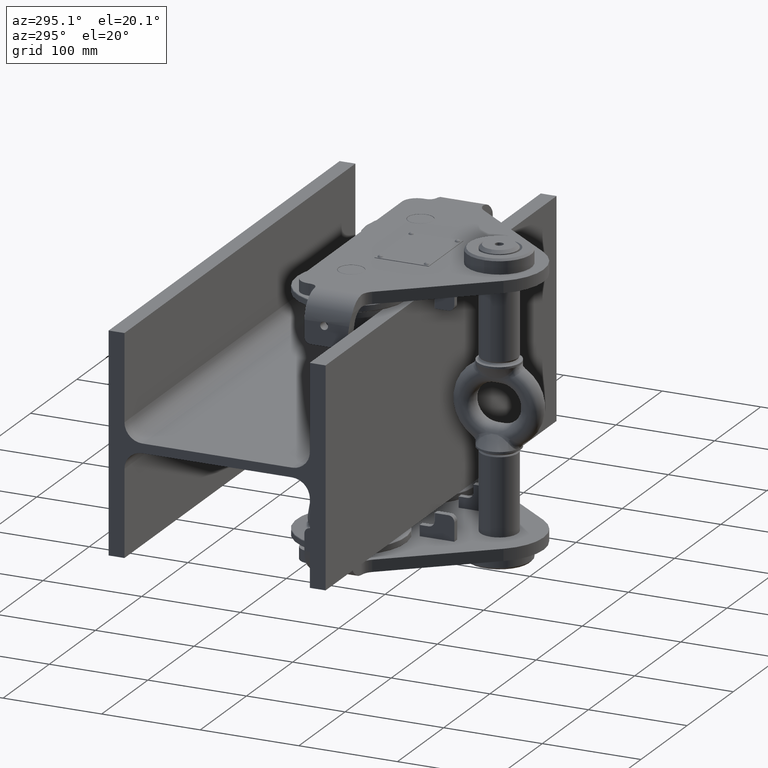
[diagram: clean part render]
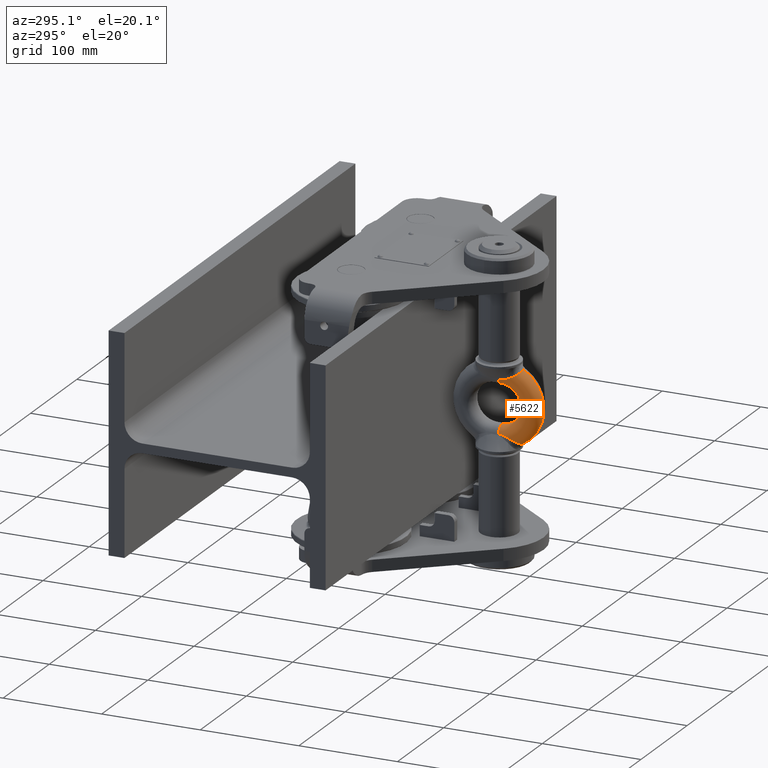
[diagram: same view with one face highlighted and labeled with its STEP entity id]
A machine part, auxiliary view. The second image highlights one B-rep face of the part: STEP entity #5622.
In plain terms, the highlighted toroidal blend (fillet) surface has major radius 31 mm and minor (blend) radius 11 mm.
Its self-contained STEP definition (entity closure, byte-faithful):
#429 = CARTESIAN_POINT ( 'NONE',  ( -2.665864661284941900, -193.7230851919375700, 35.86904092922608100 ) ) ;
#1957 = CARTESIAN_POINT ( 'NONE',  ( -7.073130345856471400, -192.1304078085558700, -34.20754636227652400 ) ) ;
#2020 = CARTESIAN_POINT ( 'NONE',  ( -5.816270571576700900, -192.8363325459275500, 34.83912537834806500 ) ) ;
#2160 = CARTESIAN_POINT ( 'NONE',  ( -6.464776766985496100, -192.5010721557301800, 34.52899101122230300 ) ) ;
#2293 = CARTESIAN_POINT ( 'NONE',  ( -9.453499129214291600, -189.6250286611885100, 32.37954828275505300 ) ) ;
#2335 = CARTESIAN_POINT ( 'NONE',  ( 1.667841704943140700E-013, -172.4999999999990300, 30.99999999999999300 ) ) ;
#2446 = ORIENTED_EDGE ( 'NONE', *, *, #25086, .T. ) ;
#2609 = B_SPLINE_CURVE_WITH_KNOTS ( 'NONE', 3,
 ( #26083, #19968, #4947, #35064, #2020, #32511, #2160, #11034, #32374, #35549, #7869, #38616, #2293, #23555, #29072, #10915, #29205, #23302, #13993, #20353 ),
 .UNSPECIFIED., .F., .F.,
 ( 4, 2, 2, 2, 2, 2, 2, 2, 2, 4 ),
 ( 0.02061757730450958900, 0.02218771759781521000, 0.02297278774446800600, 0.02375785789112079900, 0.02689813847773200200, 0.02768320862438478400, 0.02846827877103757000, 0.03003841906434314600, 0.03160855935764872400, 0.03317869965095430300 ),
 .UNSPECIFIED. ) ;
#2738 = DIRECTION ( 'NONE',  ( -1.000000000000000000, 0.0000000000000000000, 6.939431567305113600E-017 ) ) ;
#3993 = CARTESIAN_POINT ( 'NONE',  ( -10.86059126895337600, -185.4816644950572300, 30.06258340688152600 ) ) ;
#4346 = CARTESIAN_POINT ( 'NONE',  ( -10.86059126896633500, -185.4816644949588600, -30.06258340683621800 ) ) ;
#4603 = CARTESIAN_POINT ( 'NONE',  ( -10.94098412003436700, -181.2929592295776000, 28.32622397578655100 ) ) ;
#4624 = CARTESIAN_POINT ( 'NONE',  ( -10.51761595167940300, -187.3375190878605600, -30.97972163784835700 ) ) ;
#4822 = DIRECTION ( 'NONE',  ( -1.000000000000000000, 0.0000000000000000000, 6.939431567305113600E-017 ) ) ;
#4947 = CARTESIAN_POINT ( 'NONE',  ( -4.914677211445558100, -193.2092134186008800, 35.21703518008940400 ) ) ;
#5005 = CARTESIAN_POINT ( 'NONE',  ( -10.04277165718530500, -172.4999999999991500, 26.51193388622312200 ) ) ;
#5305 = CARTESIAN_POINT ( 'NONE',  ( -10.86059126896633500, -185.4816644949588600, -30.06258340683621800 ) ) ;
#5406 = ORIENTED_EDGE ( 'NONE', *, *, #10250, .T. ) ;
#5622 = ADVANCED_FACE ( 'NONE', ( #15928 ), #39167, .T. ) ;
#5826 = ORIENTED_EDGE ( 'NONE', *, *, #38865, .T. ) ;
#6278 = CARTESIAN_POINT ( 'NONE',  ( -3.956771076925034600, -193.4763785398734200, 35.53429596191681100 ) ) ;
#6407 = VERTEX_POINT ( 'NONE', #37317 ) ;
#6531 = CARTESIAN_POINT ( 'NONE',  ( -1.348441268199292600, -193.8606645752298900, 36.09000583857776700 ) ) ;
#6722 = CARTESIAN_POINT ( 'NONE',  ( -0.6792100834334921000, -193.8895612932108500, -36.14535471791597800 ) ) ;
#7186 = CIRCLE ( 'NONE', #32579, 11.00000000000000200 ) ;
#7661 = CARTESIAN_POINT ( 'NONE',  ( -6.263021965805512200, -192.6239422776005200, -34.63556435258485100 ) ) ;
#7789 = CARTESIAN_POINT ( 'NONE',  ( -9.801017030864027600, -189.0368941027778400, -31.99599951611059000 ) ) ;
#7869 = CARTESIAN_POINT ( 'NONE',  ( -9.065727411220589000, -190.1924455898634100, 32.76287081569965700 ) ) ;
#8271 = AXIS2_PLACEMENT_3D ( 'NONE', #9994, #19207, #19467 ) ;
#8613 = CARTESIAN_POINT ( 'NONE',  ( -3.317210764557444200, -193.6177932875910100, -35.71745728358008900 ) ) ;
#8827 = CARTESIAN_POINT ( 'NONE',  ( 1.659800581875115500E-013, -172.4999999999999100, -6.744701407581990500E-015 ) ) ;
#8954 = DIRECTION ( 'NONE',  ( 1.955308932202714900E-030, -1.000000000000000000, 2.823227173001816600E-014 ) ) ;
#9103 = CARTESIAN_POINT ( 'NONE',  ( -11.00309267796346200, -182.8768452642172800, -28.94228350723287900 ) ) ;
#9994 = CARTESIAN_POINT ( 'NONE',  ( 1.624817229225848600E-013, -172.5000000000003100, -31.00000000000000700 ) ) ;
#10250 = EDGE_CURVE ( 'NONE', #24506, #37141, #27774, .T. ) ;
#10418 = CARTESIAN_POINT ( 'NONE',  ( -10.07212869014797000, -173.6345560774208800, 26.57762498147496200 ) ) ;
#10476 = CARTESIAN_POINT ( 'NONE',  ( -10.07212869014779400, -173.6345560774128700, -26.57762498147453200 ) ) ;
#10538 = CARTESIAN_POINT ( 'NONE',  ( -10.92817867630647700, -184.9685418085377900, 29.82615423025547200 ) ) ;
#10849 = CARTESIAN_POINT ( 'NONE',  ( -8.635313615084882600, -190.7253606260765700, -33.13724577590873800 ) ) ;
#10915 = CARTESIAN_POINT ( 'NONE',  ( -10.34151703523699200, -187.7794055878490300, 31.24003331470228100 ) ) ;
#10966 = CARTESIAN_POINT ( 'NONE',  ( -7.452365095064458900, -191.8529525709871300, -33.98238249504738900 ) ) ;
#11034 = CARTESIAN_POINT ( 'NONE',  ( -7.486854526752926700, -191.8781860578304500, 33.98886382105531800 ) ) ;
#11768 = DIRECTION ( 'NONE',  ( -1.000000000000000000, 0.0000000000000000000, 0.0000000000000000000 ) ) ;
#12209 = CARTESIAN_POINT ( 'NONE',  ( -10.04277165718533400, -172.5000000000002600, -26.51193388622319700 ) ) ;
#12359 = VERTEX_POINT ( 'NONE', #12209 ) ;
#12635 = CARTESIAN_POINT ( 'NONE',  ( -3.956771076925037300, -193.4763785398734200, -35.53429596191681800 ) ) ;
#12933 = B_SPLINE_CURVE_WITH_KNOTS ( 'NONE', 3,
 ( #12635, #26414, #8613, #39119, #30974, #22163, #6722, #29185 ),
 .UNSPECIFIED., .F., .F.,
 ( 4, 2, 2, 4 ),
 ( 0.0000000000000000000, 0.001018688722446136600, 0.002037377444892273100, 0.004074754889784546300 ),
 .UNSPECIFIED. ) ;
#13142 = CARTESIAN_POINT ( 'NONE',  ( -3.956771076925037300, -193.4763785398734200, -35.53429596191681800 ) ) ;
#13502 = CARTESIAN_POINT ( 'NONE',  ( -10.15424992020612800, -174.7602593799728700, 26.68313006037317000 ) ) ;
#13672 = CARTESIAN_POINT ( 'NONE',  ( -3.956771076925037300, -193.4763785398734200, -35.53429596191681800 ) ) ;
#13993 = CARTESIAN_POINT ( 'NONE',  ( -10.79785756768068300, -185.9579994708168200, 30.28200713144420000 ) ) ;
#14152 = CARTESIAN_POINT ( 'NONE',  ( 2.302907216007832600E-011, -193.8895612932108700, 36.14535471791597100 ) ) ;
#14706 = VERTEX_POINT ( 'NONE', #13142 ) ;
#14848 = ORIENTED_EDGE ( 'NONE', *, *, #37128, .T. ) ;
#14888 = VERTEX_POINT ( 'NONE', #28669 ) ;
#15928 = FACE_OUTER_BOUND ( 'NONE', #33086, .T. ) ;
#16689 = DIRECTION ( 'NONE',  ( -1.000000000000000000, 0.0000000000000000000, 6.939431567305113600E-017 ) ) ;
#16766 = EDGE_CURVE ( 'NONE', #12359, #28258, #24582, .T. ) ;
#16983 = CARTESIAN_POINT ( 'NONE',  ( -5.832123771989274500, -192.8398615307866600, -34.83856190192207000 ) ) ;
#17054 = DIRECTION ( 'NONE',  ( -6.939431567305113600E-017, 0.0000000000000000000, -1.000000000000000000 ) ) ;
#17055 = EDGE_CURVE ( 'NONE', #14706, #35278, #12933, .T. ) ;
#17102 = CARTESIAN_POINT ( 'NONE',  ( -9.075204815294885200, -190.1951594617654600, -32.76245228593803900 ) ) ;
#18491 = CARTESIAN_POINT ( 'NONE',  ( -3.639611907784015900, -193.5538644917438900, 35.63053719543999900 ) ) ;
#18618 = VERTEX_POINT ( 'NONE', #21850 ) ;
#19009 = CARTESIAN_POINT ( 'NONE',  ( -2.338293639405022000, -193.7643076656575800, 35.93343989616670300 ) ) ;
#19062 = CARTESIAN_POINT ( 'NONE',  ( -10.94098412002839600, -181.2929592295099900, -28.32622397576190900 ) ) ;
#19207 = DIRECTION ( 'NONE',  ( -9.776544661013574600E-031, 1.000000000000000000, -1.414387765019840300E-014 ) ) ;
#19356 = CIRCLE ( 'NONE', #38235, 41.99999999999999300 ) ;
#19467 = DIRECTION ( 'NONE',  ( -1.000000000000000000, 0.0000000000000000000, 0.0000000000000000000 ) ) ;
#19747 = CARTESIAN_POINT ( 'NONE',  ( -10.86059126895337600, -185.4816644950572300, 30.06258340688152600 ) ) ;
#19968 = CARTESIAN_POINT ( 'NONE',  ( -4.444289525168107600, -193.3572716853605000, 35.38635958993270900 ) ) ;
#20096 = EDGE_CURVE ( 'NONE', #24142, #14888, #39189, .T. ) ;
#20353 = CARTESIAN_POINT ( 'NONE',  ( -10.86059126895337600, -185.4816644950572300, 30.06258340688152600 ) ) ;
#21127 = CIRCLE ( 'NONE', #30679, 20.00000000000000000 ) ;
#21197 = EDGE_CURVE ( 'NONE', #37141, #18618, #7186, .T. ) ;
#21616 = ORIENTED_EDGE ( 'NONE', *, *, #28073, .F. ) ;
#21850 = CARTESIAN_POINT ( 'NONE',  ( 1.659800581875115500E-013, -172.4999999999993500, 19.99999999999999300 ) ) ;
#22163 = CARTESIAN_POINT ( 'NONE',  ( -1.348868107542518200, -193.8606475235790500, -36.08997109328800700 ) ) ;
#22696 = CARTESIAN_POINT ( 'NONE',  ( -10.62247787539603300, -178.6238665773086900, 27.45760630632704000 ) ) ;
#22714 = CARTESIAN_POINT ( 'NONE',  ( -8.155000830740924300, -191.2306848377572200, -33.50640926879482600 ) ) ;
#22822 = CARTESIAN_POINT ( 'NONE',  ( -10.96886813032367100, -184.4502519775832600, 29.59800836121962700 ) ) ;
#23302 = CARTESIAN_POINT ( 'NONE',  ( -10.71164741699583400, -186.4239883958335600, 30.51267135136352200 ) ) ;
#23555 = CARTESIAN_POINT ( 'NONE',  ( -9.800700867235297800, -189.0373761349655100, 31.99632242655347300 ) ) ;
#24142 = VERTEX_POINT ( 'NONE', #14152 ) ;
#24194 = CARTESIAN_POINT ( 'NONE',  ( -10.62247787538970700, -178.6238665772616800, -27.45760630631392400 ) ) ;
#24475 = CARTESIAN_POINT ( 'NONE',  ( -3.316120144534616900, -193.6179932191707300, 35.71773478486623800 ) ) ;
#24506 = VERTEX_POINT ( 'NONE', #3993 ) ;
#24582 = CIRCLE ( 'NONE', #8271, 11.00000000000000200 ) ;
#24736 = CARTESIAN_POINT ( 'NONE',  ( 2.302907216007832600E-011, -193.8895612932108700, 36.14535471791597100 ) ) ;
#24916 = ORIENTED_EDGE ( 'NONE', *, *, #21197, .T. ) ;
#24959 = B_SPLINE_CURVE_WITH_KNOTS ( 'NONE', 3,
 ( #28559, #10476, #31183, #31730, #28171, #34898, #24194, #26140, #19062, #9103, #36034, #27850, #38331, #5305 ),
 .UNSPECIFIED., .F., .F.,
 ( 4, 2, 2, 2, 2, 2, 4 ),
 ( 0.0000000000000000000, 0.003399785676222553900, 0.005099678514333830600, 0.006799571352445106000, 0.01019935702866773700, 0.01189924986677905400, 0.01359914270489037000 ),
 .UNSPECIFIED. ) ;
#25086 = EDGE_CURVE ( 'NONE', #35278, #24142, #19356, .T. ) ;
#25877 = CARTESIAN_POINT ( 'NONE',  ( -10.00427978850373700, -188.6211551407903100, -31.73658305613295700 ) ) ;
#25998 = CARTESIAN_POINT ( 'NONE',  ( -10.40438902202832800, -176.9866782906705400, 27.05705823752740000 ) ) ;
#26012 = CARTESIAN_POINT ( 'NONE',  ( -4.915222062596855700, -193.2093603618835100, -35.21703198714332900 ) ) ;
#26083 = CARTESIAN_POINT ( 'NONE',  ( -3.956771076925034600, -193.4763785398734200, 35.53429596191681100 ) ) ;
#26140 = CARTESIAN_POINT ( 'NONE',  ( -10.82840416507894200, -180.2349330291976300, -27.94400795688215000 ) ) ;
#26414 = CARTESIAN_POINT ( 'NONE',  ( -3.640215113891221800, -193.5537171209469400, -35.63035415390918800 ) ) ;
#27774 = B_SPLINE_CURVE_WITH_KNOTS ( 'NONE', 3,
 ( #19747, #10538, #22822, #28875, #35093, #4603, #37726, #22696, #28616, #25998, #31911, #13502, #10418, #34823 ),
 .UNSPECIFIED., .F., .F.,
 ( 4, 2, 2, 2, 2, 2, 4 ),
 ( 0.0000000000000000000, 0.001702921818992131300, 0.003405843637984262600, 0.006811687275968521800, 0.008514609094960688000, 0.01021753091395285500, 0.01362337455193710800 ),
 .UNSPECIFIED. ) ;
#27850 = CARTESIAN_POINT ( 'NONE',  ( -10.96886813032944400, -184.4502519774916300, -29.59800836117990700 ) ) ;
#28073 = EDGE_CURVE ( 'NONE', #28258, #18618, #21127, .T. ) ;
#28171 = CARTESIAN_POINT ( 'NONE',  ( -10.40438902202391200, -176.9866782906357200, -27.05705823752030200 ) ) ;
#28181 = ORIENTED_EDGE ( 'NONE', *, *, #17055, .T. ) ;
#28258 = VERTEX_POINT ( 'NONE', #36739 ) ;
#28559 = CARTESIAN_POINT ( 'NONE',  ( -10.04277165718533400, -172.5000000000002600, -26.51193388622319700 ) ) ;
#28616 = CARTESIAN_POINT ( 'NONE',  ( -10.54822301512864000, -178.0824287847579500, 27.31107865332492300 ) ) ;
#28669 = CARTESIAN_POINT ( 'NONE',  ( -3.956771076925034600, -193.4763785398734200, 35.53429596191681100 ) ) ;
#28761 = CARTESIAN_POINT ( 'NONE',  ( -8.480774347117179700, -190.8972048530428700, -33.26110795466889400 ) ) ;
#28808 = ORIENTED_EDGE ( 'NONE', *, *, #16766, .F. ) ;
#28875 = CARTESIAN_POINT ( 'NONE',  ( -11.00639672466470200, -183.4048196263268600, 29.15621389712333700 ) ) ;
#28890 = CARTESIAN_POINT ( 'NONE',  ( -4.442267182442217100, -193.3577657689826600, -35.38697326526518300 ) ) ;
#29072 = CARTESIAN_POINT ( 'NONE',  ( -10.00038694337214700, -188.6293110933100900, 31.74163299084674300 ) ) ;
#29098 = CARTESIAN_POINT ( 'NONE',  ( 1.646329467084494600E-013, -172.4999999999999100, -6.744701407581990500E-015 ) ) ;
#29185 = CARTESIAN_POINT ( 'NONE',  ( 1.623692178852678900E-013, -193.8895612932108700, -36.14535471791597100 ) ) ;
#29205 = CARTESIAN_POINT ( 'NONE',  ( -10.48339921328270700, -187.3357093067033100, 30.99203829873753700 ) ) ;
#29595 = CARTESIAN_POINT ( 'NONE',  ( 1.646329467084494600E-013, -172.4999999999999100, -6.744701407581990500E-015 ) ) ;
#30679 = AXIS2_PLACEMENT_3D ( 'NONE', #8827, #2738, #35578 ) ;
#30974 = CARTESIAN_POINT ( 'NONE',  ( -2.339047010323206600, -193.7642220615677500, -35.93330432656678400 ) ) ;
#31183 = CARTESIAN_POINT ( 'NONE',  ( -10.15424992020483900, -174.7602593799557800, -26.68313006037159200 ) ) ;
#31730 = CARTESIAN_POINT ( 'NONE',  ( -10.33495784439449800, -176.4314870987140000, -26.94957099863615500 ) ) ;
#31911 = CARTESIAN_POINT ( 'NONE',  ( -10.33495784439807400, -176.4314870987443600, 26.94957099864159700 ) ) ;
#32307 = CARTESIAN_POINT ( 'NONE',  ( -9.336924173749229900, -189.8222831872259300, -32.50819245408278100 ) ) ;
#32374 = CARTESIAN_POINT ( 'NONE',  ( -8.185152834959057000, -191.2665558919397900, 33.52004130158305600 ) ) ;
#32511 = CARTESIAN_POINT ( 'NONE',  ( -6.251591481376772600, -192.6189745894333800, 34.63521102396200000 ) ) ;
#32579 = AXIS2_PLACEMENT_3D ( 'NONE', #2335, #8954, #11768 ) ;
#33037 = EDGE_CURVE ( 'NONE', #14888, #24506, #2609, .T. ) ;
#33086 = EDGE_LOOP ( 'NONE', ( #28181, #2446, #35862, #33599, #5406, #24916, #21616, #28808, #5826, #14848 ) ) ;
#33599 = ORIENTED_EDGE ( 'NONE', *, *, #33037, .T. ) ;
#34659 = B_SPLINE_CURVE_WITH_KNOTS ( 'NONE', 3,
 ( #4346, #35215, #4624, #25877, #7789, #32307, #17102, #10849, #28761, #22714, #34699, #10966, #1957, #7661, #16983, #26012, #28890, #13672 ),
 .UNSPECIFIED., .F., .F.,
 ( 4, 2, 2, 2, 2, 2, 2, 2, 4 ),
 ( 0.0000000000000000000, 0.003136678570336133700, 0.004705017855504199300, 0.006273357140672265700, 0.007057526783256270300, 0.007841696425840273200, 0.009410035711008280700, 0.01097837499617629000, 0.01254671428134429700 ),
 .UNSPECIFIED. ) ;
#34699 = CARTESIAN_POINT ( 'NONE',  ( -7.983547318032965000, -191.3923701289683400, -33.62792220186764800 ) ) ;
#34823 = CARTESIAN_POINT ( 'NONE',  ( -10.04277165718530500, -172.4999999999991500, 26.51193388622312200 ) ) ;
#34898 = CARTESIAN_POINT ( 'NONE',  ( -10.54822301512283600, -178.0824287847148400, -27.31107865331394900 ) ) ;
#34943 = DIRECTION ( 'NONE',  ( 6.939431567305117300E-017, 0.0000000000000000000, 1.000000000000000000 ) ) ;
#35064 = CARTESIAN_POINT ( 'NONE',  ( -5.594144851150479900, -192.9359434036288400, 34.93690126647249600 ) ) ;
#35093 = CARTESIAN_POINT ( 'NONE',  ( -11.00309267796494200, -182.8768452642975100, 28.94228350726490700 ) ) ;
#35215 = CARTESIAN_POINT ( 'NONE',  ( -10.73526447715386900, -186.4332667937581200, -30.50093904169140700 ) ) ;
#35278 = VERTEX_POINT ( 'NONE', #35864 ) ;
#35549 = CARTESIAN_POINT ( 'NONE',  ( -8.924635906804958600, -190.3769786474453300, 32.89092196559328600 ) ) ;
#35578 = DIRECTION ( 'NONE',  ( 6.939431567305098800E-017, 0.0000000000000000000, 1.000000000000000000 ) ) ;
#35862 = ORIENTED_EDGE ( 'NONE', *, *, #20096, .T. ) ;
#35864 = CARTESIAN_POINT ( 'NONE',  ( 1.623692178852678900E-013, -193.8895612932108700, -36.14535471791597100 ) ) ;
#36034 = CARTESIAN_POINT ( 'NONE',  ( -11.00639672466524200, -183.4048196262427300, -29.15621389708878700 ) ) ;
#36739 = CARTESIAN_POINT ( 'NONE',  ( 1.659800581875115500E-013, -172.5000000000001400, -20.00000000000000700 ) ) ;
#37098 = CARTESIAN_POINT ( 'NONE',  ( -0.6790874261554050700, -193.8895612932116700, 36.14535471791718600 ) ) ;
#37128 = EDGE_CURVE ( 'NONE', #6407, #14706, #34659, .T. ) ;
#37141 = VERTEX_POINT ( 'NONE', #5005 ) ;
#37317 = CARTESIAN_POINT ( 'NONE',  ( -10.86059126896633500, -185.4816644949588600, -30.06258340683621800 ) ) ;
#37726 = CARTESIAN_POINT ( 'NONE',  ( -10.82840416508587600, -180.2349330292569200, 27.94400795690215100 ) ) ;
#38235 = AXIS2_PLACEMENT_3D ( 'NONE', #29098, #16689, #34943 ) ;
#38331 = CARTESIAN_POINT ( 'NONE',  ( -10.92817867631546000, -184.9685418084425800, -29.82615423021303900 ) ) ;
#38485 = AXIS2_PLACEMENT_3D ( 'NONE', #29595, #4822, #17054 ) ;
#38616 = CARTESIAN_POINT ( 'NONE',  ( -9.329820423076185400, -189.8168572754970600, 32.50745927625422400 ) ) ;
#38865 = EDGE_CURVE ( 'NONE', #12359, #6407, #24959, .T. ) ;
#39119 = CARTESIAN_POINT ( 'NONE',  ( -2.666728321037576500, -193.7229692087872500, -35.86886362339194500 ) ) ;
#39167 = TOROIDAL_SURFACE ( 'NONE', #38485, 31.00000000000000000, 11.00000000000000000 ) ;
#39189 = B_SPLINE_CURVE_WITH_KNOTS ( 'NONE', 3,
 ( #24736, #37098, #6531, #19009, #429, #24475, #18491, #6278 ),
 .UNSPECIFIED., .F., .F.,
 ( 4, 2, 2, 4 ),
 ( 0.004075249230049825100, 0.006116763169580910800, 0.007137520139346459300, 0.008158277109112007900 ),
 .UNSPECIFIED. ) ;